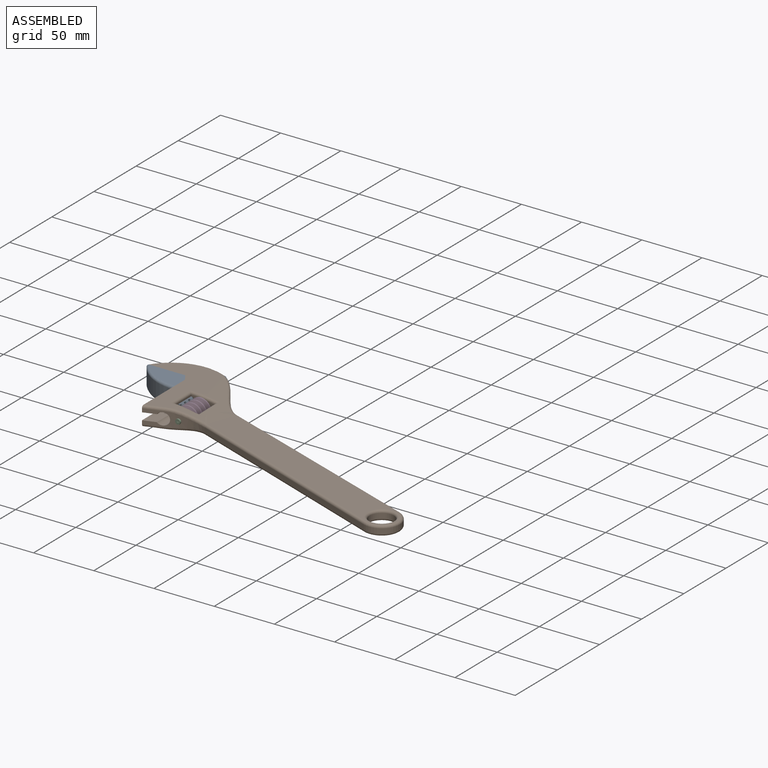
[diagram: assembled view]
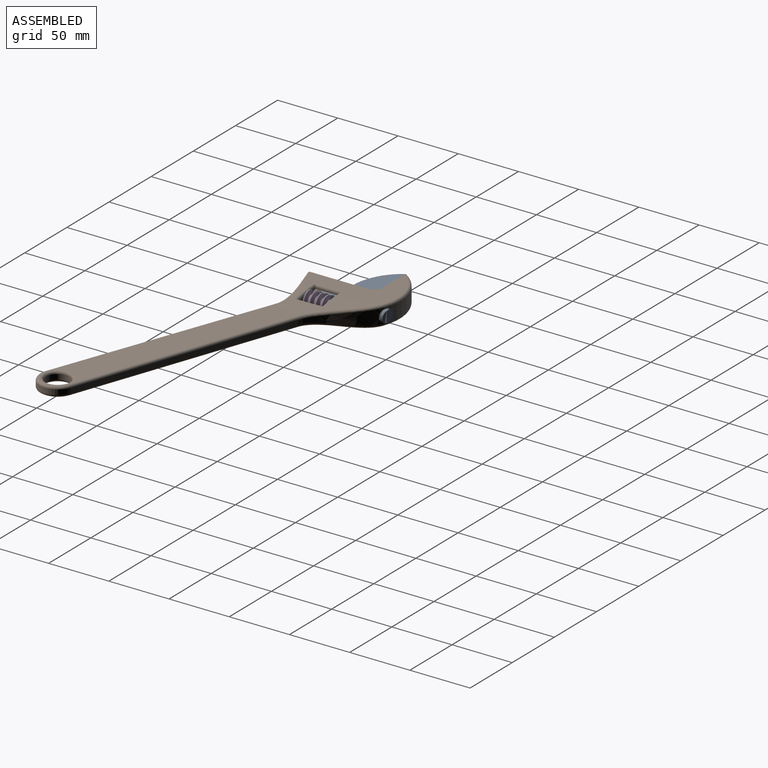
[diagram: assembled view, second angle]
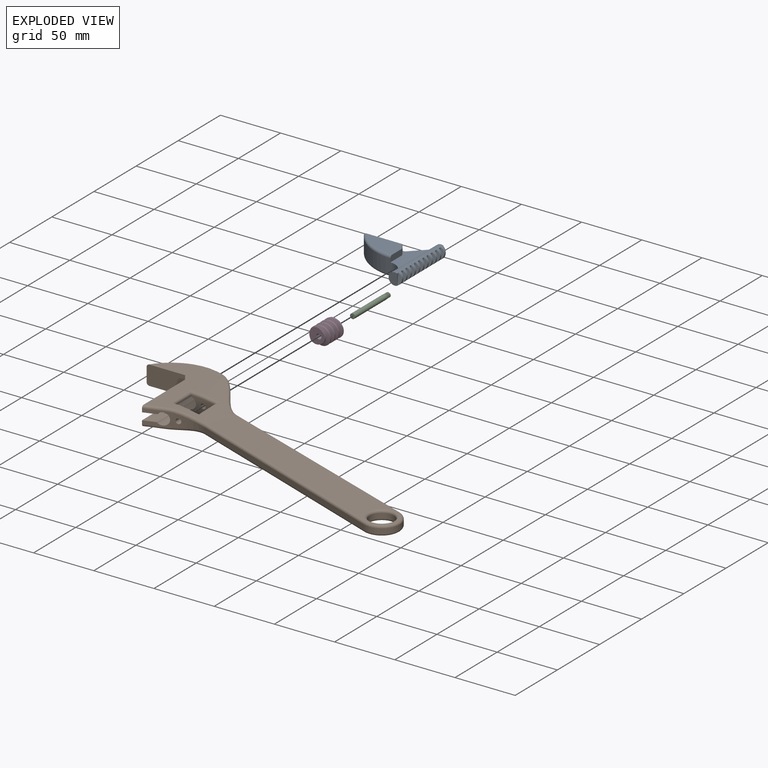
[diagram: exploded view]
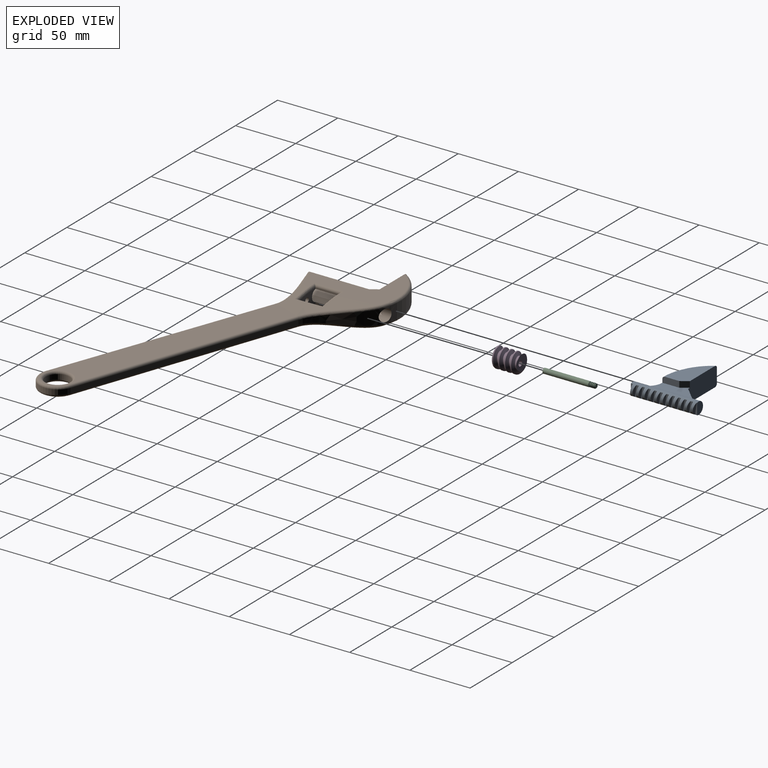
[diagram: exploded view, second angle]
ASSEMBLY  parts=4 mates=3
PART A: 51 faces, bbox 58x55x16 mm
  f0: cylinder r=5mm len=55mm, axis (0,-1,0), area 1153.7mm2, adj f1,f2,f3,f4,f5,f14,f15,f16
  f1: plane 10x7mm, normal (0,1,0), area 58.7mm2, adj f0,f17
  f2: plane 10x7mm, normal (0,-1,0), area 58.7mm2, adj f0,f15
  f3: cylinder r=12mm len=10mm, axis (0,0,-1), area 64.1mm2, adj f0,f4,f5,f10
  f4: plane 37.37x14mm, normal (0,0,1), area 299.9mm2, adj f0,f3,f8,f9,f11,f14
  f5: plane 37.37x14mm, normal (0,0,-1), area 299.9mm2, adj f0,f3,f6,f7,f9,f14
  f6: plane 6x5mm, normal (0.83,0.55,0), area 36.1mm2, adj f5,f7,f9,f13
  f7: plane 14x5mm, normal (1,0,0), area 69.1mm2, adj f5,f6,f10,f13,f49
  f8: plane 6x5mm, normal (0.83,0.55,0), area 36.1mm2, adj f4,f9,f11,f12
  f9: plane 34x16mm, normal (0,1,0), area 522mm2, adj f4,f5,f6,f8,f10,f12,f13,f14
  f10: cylinder r=42.4mm len=36mm, axis (0,0,-1), area 516mm2, adj f3,f7,f9,f11,f49,f50
  f11: plane 14x5mm, normal (1,0,0), area 69.1mm2, adj f4,f8,f10,f12,f50
  f12: plane 33.62x18mm, normal (0,0,1), area 413.7mm2, adj f8,f9,f11,f50
  f13: plane 33.62x18mm, normal (0,0,-1), area 413.7mm2, adj f6,f7,f9,f49
  f14: plane 12x12mm, normal (-0.71,0.71,0), area 96mm2, adj f0,f4,f5,f9
  f15: plane 9.17x1.64mm, normal (1,0,0), area 9.2mm2, adj f0,f2,f16
  f16: plane 9.17x3mm, normal (0.17,-0.98,0.14), area 20.3mm2, adj f0,f15
  f17: plane 9.17x1.64mm, normal (1,0,0), area 9.2mm2, adj f0,f1,f18
  f18: plane 9.17x3mm, normal (0.17,0.98,-0.14), area 20.3mm2, adj f0,f17
  f19: plane 9.17x3.29mm, normal (1,0,0), area 18.3mm2, adj f0,f20,f21
  f20: plane 9.17x3mm, normal (0.17,0.98,-0.14), area 20.3mm2, adj f0,f19
  f21: plane 9.17x3mm, normal (0.17,-0.98,0.14), area 20.3mm2, adj f0,f19
  f22: plane 9.17x3.29mm, normal (1,0,0), area 18.3mm2, adj f0,f23,f24
  f23: plane 9.17x3mm, normal (0.17,0.98,-0.14), area 20.3mm2, adj f0,f22
  f24: plane 9.17x3mm, normal (0.17,-0.98,0.14), area 20.3mm2, adj f0,f22
  f25: plane 9.17x3.29mm, normal (1,0,0), area 18.3mm2, adj f0,f26,f27
  f26: plane 9.17x3mm, normal (0.17,0.98,-0.14), area 20.3mm2, adj f0,f25
  f27: plane 9.17x3mm, normal (0.17,-0.98,0.14), area 20.3mm2, adj f0,f25
  f28: plane 9.17x3.29mm, normal (1,0,0), area 18.3mm2, adj f0,f29,f30
  f29: plane 9.17x3mm, normal (0.17,0.98,-0.14), area 20.3mm2, adj f0,f28
  f30: plane 9.17x3mm, normal (0.17,-0.98,0.14), area 20.3mm2, adj f0,f28
  f31: plane 9.17x3.29mm, normal (1,0,0), area 18.3mm2, adj f0,f32,f33
  f32: plane 9.17x3mm, normal (0.17,0.98,-0.14), area 20.3mm2, adj f0,f31
  f33: plane 9.17x3mm, normal (0.17,-0.98,0.14), area 20.3mm2, adj f0,f31
  f34: plane 9.17x3.29mm, normal (1,0,0), area 18.3mm2, adj f0,f35,f36
  f35: plane 9.17x3mm, normal (0.17,0.98,-0.14), area 20.3mm2, adj f0,f34
  f36: plane 9.17x3mm, normal (0.17,-0.98,0.14), area 20.3mm2, adj f0,f34
  f37: plane 9.17x3.29mm, normal (1,0,0), area 18.3mm2, adj f0,f38,f39
  f38: plane 9.17x3mm, normal (0.17,0.98,-0.14), area 20.3mm2, adj f0,f37
  f39: plane 9.17x3mm, normal (0.17,-0.98,0.14), area 20.3mm2, adj f0,f37
  f40: plane 9.17x3.29mm, normal (1,0,0), area 18.3mm2, adj f0,f41,f42
  f41: plane 9.17x3mm, normal (0.17,0.98,-0.14), area 20.3mm2, adj f0,f40
  f42: plane 9.17x3mm, normal (0.17,-0.98,0.14), area 20.3mm2, adj f0,f40
  f43: plane 9.17x3.29mm, normal (1,0,0), area 18.3mm2, adj f0,f44,f45
  f44: plane 9.17x3mm, normal (0.17,0.98,-0.14), area 20.3mm2, adj f0,f43
  f45: plane 9.17x3mm, normal (0.17,-0.98,0.14), area 20.3mm2, adj f0,f43
  f46: plane 9.17x3mm, normal (0.17,-0.98,0.14), area 20.3mm2, adj f0,f48
  f47: plane 9.17x3mm, normal (0.17,0.98,-0.14), area 20.3mm2, adj f0,f48
  f48: plane 9.17x3.29mm, normal (1,0,0), area 18.3mm2, adj f0,f46,f47
  f49: torus R=40.4mm, axis (0,0,1), area 131.3mm2, adj f7,f9,f10,f13
  f50: torus R=40.4mm, axis (0,0,1), area 131.3mm2, adj f9,f10,f11,f12
PART B: 69 faces, bbox 288.3x144.4x18 mm
  f0: plane 20x1.1mm, normal (1,0,0), area 22mm2, adj f3,f23,f24,f46
  f1: plane 51.28x5.28mm, normal (-1,0,0), area 254.1mm2, adj f2,f4,f14,f35,f49
  f2: plane 15.19x5.19mm, normal (0.32,-0.95,0), area 39.5mm2, adj f1,f3,f8,f35,f49
  f3: cylinder r=5mm len=70.92mm, axis (0,-1,0), area 1499.5mm2, adj f0,f2,f5,f6,f7,f8,f12,f23
  f4: plane 6x5mm, normal (-0.83,-0.55,0), area 36.1mm2, adj f1,f9,f14,f35
  f5: cylinder r=42.4mm len=51mm, axis (0,0,-1), area 648.5mm2, adj f3,f6,f9,f53,f58
  f6: bspline ~42.38x41.78mm, area 466.1mm2, adj f3,f5,f18,f55,f56,f57,f59,f60
  f7: plane 20x1.1mm, normal (1,0,0), area 22mm2, adj f3,f23,f24,f42
  f8: bspline ~32.8x16mm, area 224.7mm2, adj f2,f3,f12,f15,f26,f49,f50,f65
  f9: plane 34.53x16.53mm, normal (0,-1,0), area 522mm2, adj f4,f5,f10,f13,f14,f34,f35,f36
  f10: plane 6x5mm, normal (-0.83,-0.55,0), area 36.1mm2, adj f9,f11,f13,f34
  f11: plane 51.28x5.28mm, normal (-1,0,0), area 254.1mm2, adj f10,f12,f13,f34,f66
  f12: plane 15.19x5.19mm, normal (0.32,-0.95,0), area 39.5mm2, adj f3,f8,f11,f34,f66
  f13: plane 72.9x48.63mm, normal (0,0,1), area 1431.4mm2, adj f9,f10,f11,f21,f40,f41,f42,f58
  f14: plane 72.9x48.63mm, normal (0,0,-1), area 1431.4mm2, adj f1,f4,f9,f22,f44,f46,f48,f49
  f15: plane 178.2x65.92mm, normal (-0.35,-0.94,0), area 760mm2, adj f8,f16,f51,f64
  f16: cylinder r=15mm len=29.1mm, axis (0,0,-1), area 188.5mm2, adj f15,f18,f52,f63
  f17: cylinder r=10mm len=20mm, axis (0,0,-1), area 251.3mm2, adj f67,f68
  f18: plane 178.88x64.04mm, normal (0.34,0.94,0), area 760mm2, adj f6,f16,f54,f62
  f19: plane 195.65x89.26mm, normal (0,0,1), area 4563.1mm2, adj f21,f61,f62,f63,f64,f65,f68
  f20: plane 195.65x89.26mm, normal (0,0,-1), area 4563.1mm2, adj f22,f50,f51,f52,f54,f56,f67
  f21: bspline ~69.26x42.38mm, area 1081.5mm2, adj f13,f19,f37,f38,f39,f60,f66
  f22: bspline ~69.26x42.38mm, area 1081.5mm2, adj f14,f20,f43,f45,f47,f49,f57
  f23: plane 20.04x12.01mm, normal (0,-1,0), area 166.3mm2, adj f0,f3,f7,f25,f27,f37,f39,f45
  f24: plane 20.03x12mm, normal (0,1,0), area 157.2mm2, adj f0,f3,f7,f25,f26,f37,f38,f43
  f25: plane 20x7.16mm, normal (-1,0,0), area 136mm2, adj f23,f24,f37,f45
  f26: cylinder r=2.1mm len=9.44mm, axis (0,1,0), area 124.6mm2, adj f8,f24
  f27: cylinder r=2.1mm len=7.5mm, axis (0,1,0), area 99mm2, adj f23,f33
  f28: bspline ~5.79x4.62mm, area 33mm2, adj f30,f31,f32,f33
  f29: bspline ~5.79x4.62mm, area 33mm2, adj f30,f31,f32,f33
  f30: bspline ~5.66x4.62mm, area 12.6mm2, adj f28,f29,f32,f33
  f31: cylinder r=1.25mm len=5mm, axis (0,-1,0), area 13.3mm2, adj f28,f29,f32,f33
  f32: plane 3.47x3.41mm, normal (0,-1,0), area 8.1mm2, adj f28,f29,f30,f31
  f33: plane 4.42x4.42mm, normal (0,-1,0), area 5.8mm2, adj f27,f28,f29,f30,f31
  f34: plane 69x14mm, normal (0,0,-1), area 637.3mm2, adj f3,f9,f10,f11,f12,f36
  f35: plane 69x14mm, normal (0,0,1), area 637.3mm2, adj f1,f2,f3,f4,f9,f36
  f36: plane 14x14mm, normal (0.71,-0.71,0), area 96mm2, adj f3,f9,f34,f35
  f37: bspline ~31.27x2.9mm, area 73.4mm2, adj f21,f23,f24,f25,f38,f39
  f38: bspline ~26.34x5.36mm, area 67.7mm2, adj f21,f24,f37,f40
  f39: bspline ~27.01x4.92mm, area 66.7mm2, adj f21,f23,f37,f41
  f40: cylinder r=2mm len=2mm, axis (-1,0,0), area 3.1mm2, adj f13,f38,f42
  f41: cylinder r=2mm len=2mm, axis (1,0,0), area 3.1mm2, adj f13,f39,f42
  f42: cylinder r=2mm len=24mm, axis (0,1,0), area 69.1mm2, adj f7,f13,f40,f41
  f43: bspline ~25.68x5.26mm, area 67.7mm2, adj f22,f24,f44,f45
  f44: cylinder r=2mm len=2mm, axis (-1,0,0), area 3.1mm2, adj f14,f43,f46
  f45: bspline ~39.05x3.07mm, area 73.4mm2, adj f22,f23,f24,f25,f43,f47
  f46: cylinder r=2mm len=24mm, axis (0,-1,0), area 69.1mm2, adj f0,f14,f44,f48
  f47: bspline ~31.84x4.82mm, area 66.7mm2, adj f22,f23,f45,f48
  f48: cylinder r=2mm len=2mm, axis (1,0,0), area 3.1mm2, adj f14,f46,f47
  f49: bspline ~54.96x12.23mm, area 154.9mm2, adj f1,f2,f8,f14,f22,f50
  f50: bspline ~9.41x5.09mm, area 0mm2, adj f8,f20,f49,f51
  f51: cylinder r=2mm len=178.89mm, axis (0.94,-0.35,0), area 596.9mm2, adj f15,f20,f50,f52
  f52: torus R=13mm, axis (0,0,1), area 140.9mm2, adj f16,f20,f51,f54
  f53: torus R=40.4mm, axis (0,0,1), area 178.1mm2, adj f5,f9,f14,f55
  f54: cylinder r=2mm len=179.56mm, axis (-0.94,0.34,0), area 596.9mm2, adj f18,f20,f52,f56
  f55: bspline ~16.15x7.72mm, area 2.5mm2, adj f6,f14,f53,f57
  f56: bspline ~16.25x7.48mm, area 0mm2, adj f6,f20,f54,f57
  f57: bspline ~43.9x43.76mm, area 180.5mm2, adj f6,f22,f55,f56
  f58: torus R=40.4mm, axis (0,0,1), area 178.1mm2, adj f5,f9,f13,f59
  f59: bspline ~16.15x7.72mm, area 2.5mm2, adj f6,f13,f58,f60
  f60: bspline ~43.9x43.76mm, area 180.5mm2, adj f6,f21,f59,f61
  f61: bspline ~16.25x7.48mm, area 0mm2, adj f6,f19,f60,f62
  f62: cylinder r=2mm len=179.56mm, axis (0.94,-0.34,0), area 596.9mm2, adj f18,f19,f61,f63
  f63: torus R=13mm, axis (0,0,1), area 140.9mm2, adj f16,f19,f62,f64
  f64: cylinder r=2mm len=178.89mm, axis (-0.94,0.35,0), area 596.9mm2, adj f15,f19,f63,f65
  f65: bspline ~9.41x5.09mm, area 0mm2, adj f8,f19,f64,f66
  f66: bspline ~54.96x12.23mm, area 154.9mm2, adj f8,f11,f12,f13,f21,f65
  f67: torus R=12mm, axis (0,0,1), area 211.7mm2, adj f17,f20
  f68: torus R=12mm, axis (0,0,1), area 211.7mm2, adj f17,f19
PART C: 13 faces, bbox 4.4x43.7x4.8 mm
  f0: plane 4.2x4.2mm, normal (0,-1,0), area 12.9mm2, adj f7,f8,f9,f10,f11
  f1: bspline ~5.79x4.62mm, area 33mm2, adj f3,f4,f5,f6
  f2: bspline ~5.79x4.62mm, area 33mm2, adj f3,f4,f5,f6
  f3: bspline ~5.66x4.62mm, area 12.6mm2, adj f1,f2,f5,f6
  f4: cylinder r=1.25mm len=5mm, axis (0,-1,0), area 13.3mm2, adj f1,f2,f5,f6
  f5: plane 3.47x3.41mm, normal (0,1,0), area 8.1mm2, adj f1,f2,f3,f4
  f6: plane 4.42x4.42mm, normal (0,1,0), area 5.8mm2, adj f1,f2,f3,f4,f7
  f7: cylinder r=2.1mm len=38mm, axis (0,1,0), area 501.4mm2, adj f0,f6
  f8: plane 0.5x0.5mm, normal (-1,0,0), area 0.3mm2, adj f0,f9,f11,f12
  f9: plane 2x0.5mm, normal (0,0,-1), area 1mm2, adj f0,f8,f10,f12
  f10: plane 0.5x0.5mm, normal (1,0,0), area 0.3mm2, adj f0,f9,f11,f12
  f11: plane 2x0.5mm, normal (0,0,1), area 1mm2, adj f0,f8,f10,f12
  f12: plane 2x0.5mm, normal (0,-1,0), area 1mm2, adj f8,f9,f10,f11
PART D: 7 faces, bbox 17x24.8x19.4 mm
  f0: plane 13.9x13.66mm, normal (0,-1,0), area 115mm2, adj f1,f2,f3,f4,f6
  f1: bspline ~23.15x18.48mm, area 528.2mm2, adj f0,f3,f4,f5
  f2: bspline ~23.15x18.48mm, area 528.4mm2, adj f0,f3,f4,f5
  f3: bspline ~22.65x18.48mm, area 201.7mm2, adj f0,f1,f2,f5
  f4: cylinder r=5mm len=20mm, axis (0,-1,0), area 212.9mm2, adj f0,f1,f2,f5
  f5: plane 13.9x13.66mm, normal (0,1,0), area 115mm2, adj f1,f2,f3,f4,f6
  f6: cylinder r=2.1mm len=20mm, axis (0,1,0), area 263.9mm2, adj f0,f5
PLACE A at identity
PLACE B at identity fixed
PLACE C at identity
PLACE D at identity
MATE revolute B.f26 <-> D.f4  axis (0,1,0) through (25,27,0)mm
MATE slider B.f3 <-> A.f0  axis (0,1,0) through (14,57,0)mm
MATE cylindrical B.f26 <-> C.f7  axis (0,1,0) through (25,27,0)mm
